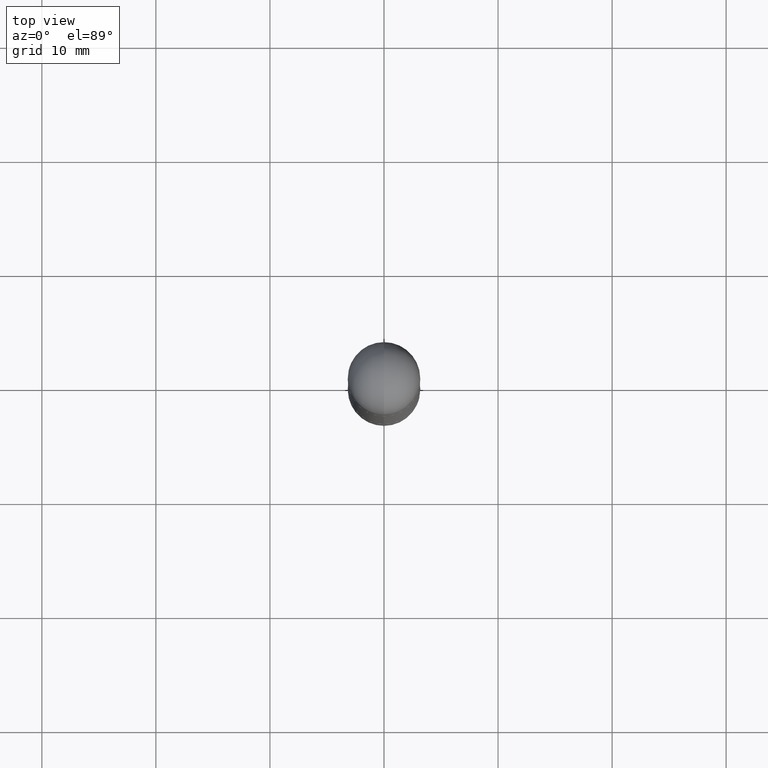
[diagram: clean part render]
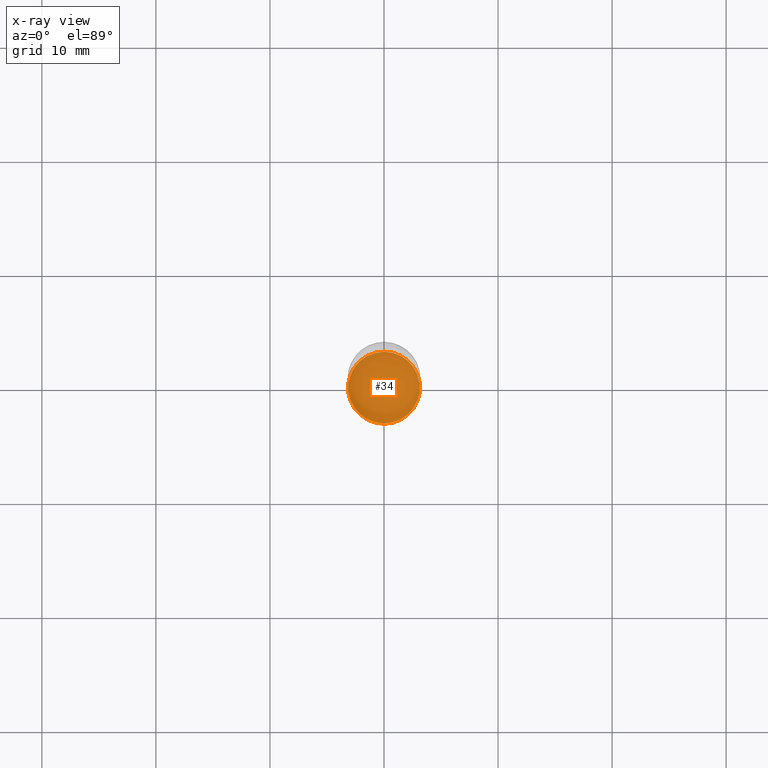
[diagram: x-ray — body ghosted, one internal face saturated and labeled with its STEP entity id]
A machine part, top view, then the same camera in x-ray: the body is ghosted and one INTERNAL B-rep face — a face not visible from any outside direction — is saturated and labeled: STEP entity #34.
In plain terms, the highlighted planar face has unit normal (-0, 0, 1).
Its self-contained STEP definition (entity closure, byte-faithful):
#34 = ADVANCED_FACE ( 'NONE', ( #295 ), #103, .F. ) ;
#53 = DIRECTION ( 'NONE',  ( -2.445337981103964041E-29, 3.491668687805485632E-15, 1.000000000000000000 ) ) ;
#93 = EDGE_CURVE ( 'NONE', #182, #374, #205, .T. ) ;
#103 = PLANE ( 'NONE',  #509 ) ;
#142 = AXIS2_PLACEMENT_3D ( 'NONE', #622, #53, #800 ) ;
#153 = EDGE_CURVE ( 'NONE', #374, #182, #587, .T. ) ;
#182 = VERTEX_POINT ( 'NONE', #738 ) ;
#205 = CIRCLE ( 'NONE', #142, 0.1239999999999999991 ) ;
#218 = CARTESIAN_POINT ( 'NONE',  ( 4.890675962207928082E-29, -6.983337375610971265E-15, -2.000000000000000000 ) ) ;
#220 = AXIS2_PLACEMENT_3D ( 'NONE', #423, #618, #675 ) ;
#295 = FACE_OUTER_BOUND ( 'NONE', #775, .T. ) ;
#374 = VERTEX_POINT ( 'NONE', #769 ) ;
#423 = CARTESIAN_POINT ( 'NONE',  ( 4.890675962207927522E-29, -6.983337375610970476E-15, -1.999999999999999778 ) ) ;
#436 = ORIENTED_EDGE ( 'NONE', *, *, #93, .F. ) ;
#509 = AXIS2_PLACEMENT_3D ( 'NONE', #218, #674, #607 ) ;
#587 = CIRCLE ( 'NONE', #220, 0.1239999999999999991 ) ;
#607 = DIRECTION ( 'NONE',  ( -6.982962677686265922E-15, -1.000000000000000000, 3.491668687805485632E-15 ) ) ;
#618 = DIRECTION ( 'NONE',  ( -2.445337981103964041E-29, 3.491668687805485632E-15, 1.000000000000000000 ) ) ;
#622 = CARTESIAN_POINT ( 'NONE',  ( 4.890675962207927522E-29, -6.983337375610970476E-15, -1.999999999999999778 ) ) ;
#639 = ORIENTED_EDGE ( 'NONE', *, *, #153, .F. ) ;
#674 = DIRECTION ( 'NONE',  ( -2.445337981103963761E-29, 3.491668687805485632E-15, 1.000000000000000000 ) ) ;
#675 = DIRECTION ( 'NONE',  ( -6.982962677686265922E-15, -1.000000000000000000, 4.406206441393973340E-15 ) ) ;
#738 = CARTESIAN_POINT ( 'NONE',  ( -8.658873720330480207E-16, -0.1240000000000069796, -1.999999999999999112 ) ) ;
#769 = CARTESIAN_POINT ( 'NONE',  ( 8.846257060213744265E-16, 0.1239999999999930186, -2.000000000000000444 ) ) ;
#775 = EDGE_LOOP ( 'NONE', ( #436, #639 ) ) ;
#800 = DIRECTION ( 'NONE',  ( -6.982962677686265922E-15, -1.000000000000000000, 4.406206441393973340E-15 ) ) ;